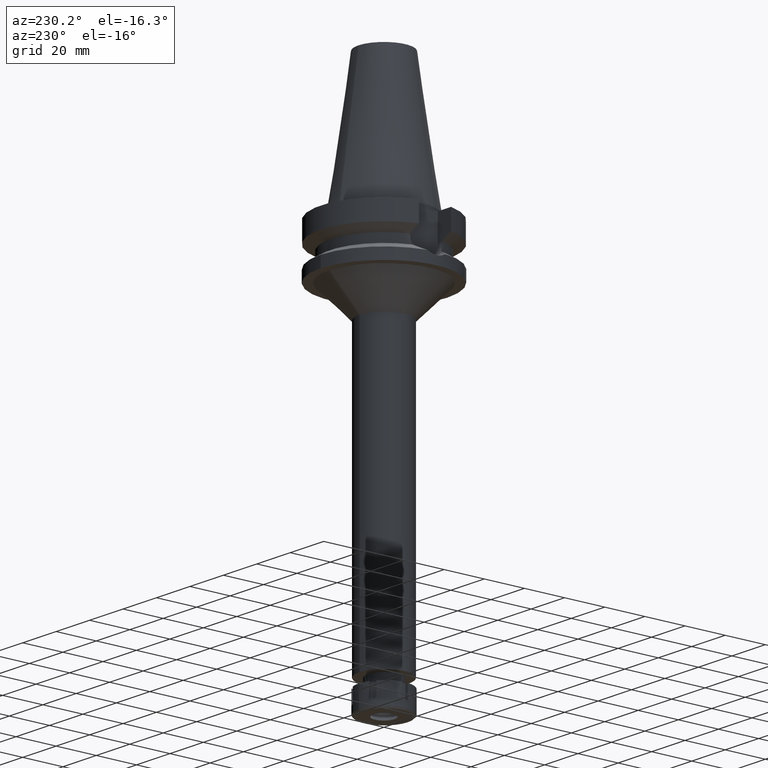
[diagram: clean part render]
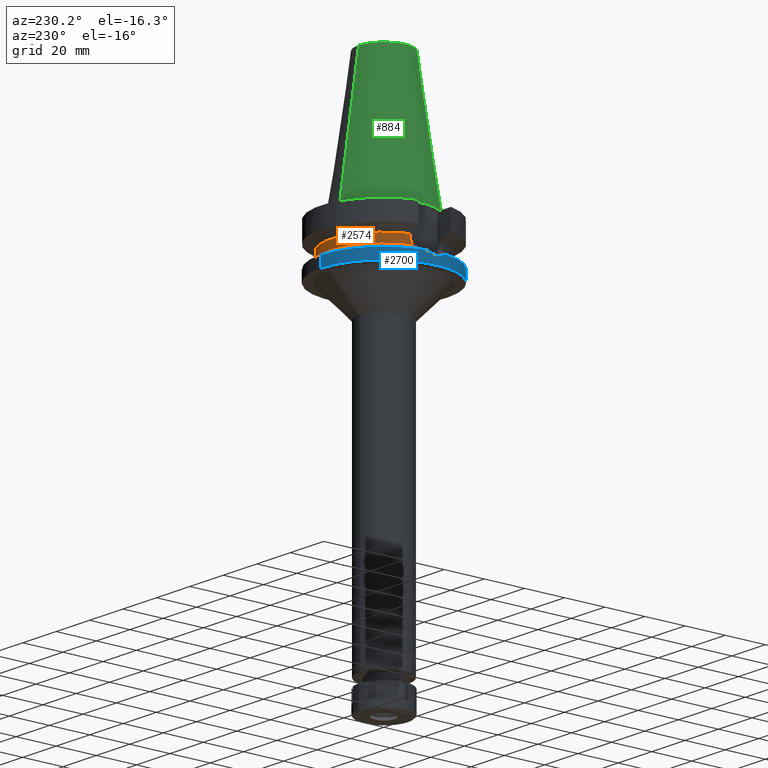
[diagram: same view with three faces highlighted in distinct colors, each labeled with its STEP entity id]
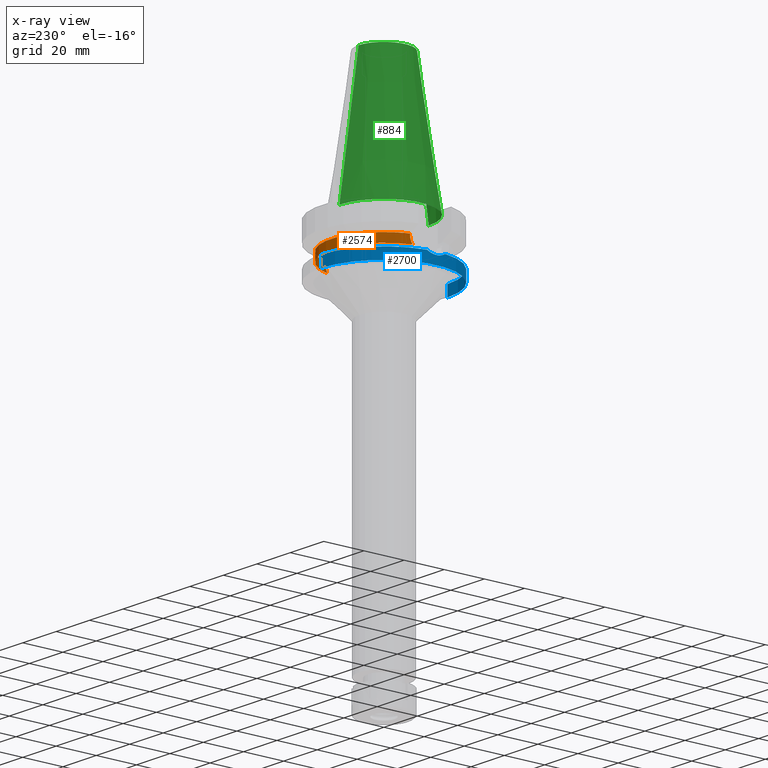
[diagram: x-ray of the same camera — body ghosted, the three highlighted faces saturated]
A machine part, auxiliary view with three faces highlighted in distinct colors.
The next image is the same camera in x-ray (body ghosted, the three faces saturated) — at least one of them is partly hidden behind the body in this view.
Their STEP definitions:

[orange] entity #2574 — the highlighted cylindrical surface (partial cylindrical patch) has radius 26.5 mm, axis along (0, 0, -1).
#121 = EDGE_CURVE ( 'NONE', #923, #2080, #1302, .T. ) ;
#185 = CARTESIAN_POINT ( 'NONE',  ( 25.39164478449756501, 7.584820969894029652, -17.65194245036793319 ) ) ;
#205 = CARTESIAN_POINT ( 'NONE',  ( -25.31205759391834320, 7.845621557333299911, -16.75326793493029243 ) ) ;
#260 = VERTEX_POINT ( 'NONE', #3055 ) ;
#351 = VECTOR ( 'NONE', #1175, 1000.000000000000114 ) ;
#369 = LINE ( 'NONE', #3117, #351 ) ;
#442 = CARTESIAN_POINT ( 'NONE',  ( 25.24772413102000002, 8.049995416383998403, -14.45229202342000008 ) ) ;
#523 = CARTESIAN_POINT ( 'NONE',  ( -25.32121872273809160, 7.815971166075089016, -16.87703378350898120 ) ) ;
#538 = CARTESIAN_POINT ( 'NONE',  ( -25.36818304347359643, 7.663708172145708986, -17.48836484274261593 ) ) ;
#552 = CARTESIAN_POINT ( 'NONE',  ( 25.24772266957998923, 8.049999999999997158, -15.58999073686739045 ) ) ;
#554 = CARTESIAN_POINT ( 'NONE',  ( -25.24772266958000344, 8.050000000000000711, -14.94999999999999929 ) ) ;
#557 = DIRECTION ( 'NONE',  ( -0.9527442516822307583, 0.3037735849057093818, 0.0000000000000000000 ) ) ;
#573 = CARTESIAN_POINT ( 'NONE',  ( 25.24772266958000344, 8.050000000000000711, -14.94999999999999929 ) ) ;
#651 = EDGE_CURVE ( 'NONE', #260, #923, #2602, .T. ) ;
#726 = CARTESIAN_POINT ( 'NONE',  ( 0.0000000000000000000, 0.0000000000000000000, -18.74774300138999905 ) ) ;
#770 = CARTESIAN_POINT ( 'NONE',  ( 25.32550226136657656, 7.802082245156440443, -16.93251888162812335 ) ) ;
#923 = VERTEX_POINT ( 'NONE', #3198 ) ;
#1064 = CARTESIAN_POINT ( 'NONE',  ( 25.53175183775000079, 7.097862220092999941, -18.74774300138999905 ) ) ;
#1102 = CARTESIAN_POINT ( 'NONE',  ( -25.29454717857531421, 7.902012029794968306, -16.48868902739532416 ) ) ;
#1121 = CARTESIAN_POINT ( 'NONE',  ( -25.25396593744604701, 8.030896968460043084, -15.59377931110964788 ) ) ;
#1158 = ORIENTED_EDGE ( 'NONE', *, *, #121, .F. ) ;
#1175 = DIRECTION ( 'NONE',  ( -1.016224662221004237E-06, -3.187251308830015568E-06, -0.9999999999944043649 ) ) ;
#1233 = ORIENTED_EDGE ( 'NONE', *, *, #1600, .T. ) ;
#1302 = LINE ( 'NONE', #2429, #3347 ) ;
#1344 = DIRECTION ( 'NONE',  ( 0.0000000000000000000, 0.0000000000000000000, -1.000000000000000000 ) ) ;
#1506 = EDGE_CURVE ( 'NONE', #1751, #2471, #2027, .T. ) ;
#1540 = DIRECTION ( 'NONE',  ( 0.0000000000000000000, 0.0000000000000000000, -1.000000000000000000 ) ) ;
#1600 = EDGE_CURVE ( 'NONE', #3296, #2080, #2583, .T. ) ;
#1631 = CARTESIAN_POINT ( 'NONE',  ( 25.37572817766061561, 7.637723572221779555, -17.49814693646424146 ) ) ;
#1655 = CARTESIAN_POINT ( 'NONE',  ( -25.31954463780458298, 7.821394976200441995, -16.85491936548652347 ) ) ;
#1696 = CARTESIAN_POINT ( 'NONE',  ( -25.28049982587670996, 7.946985634408783916, -16.24435369768241699 ) ) ;
#1751 = VERTEX_POINT ( 'NONE', #554 ) ;
#1781 = EDGE_LOOP ( 'NONE', ( #1233, #1158, #2295, #3564, #2255, #1991 ) ) ;
#1792 = DIRECTION ( 'NONE',  ( 0.0000000000000000000, 1.000000000000000000, 0.0000000000000000000 ) ) ;
#1813 = EDGE_CURVE ( 'NONE', #3296, #1751, #369, .T. ) ;
#1818 = CARTESIAN_POINT ( 'NONE',  ( 0.0000000000000000000, 2.184402495638999836E-14, 78.36999999999999034 ) ) ;
#1849 = DIRECTION ( 'NONE',  ( 0.0000000000000000000, 0.0000000000000000000, 1.000000000000000000 ) ) ;
#1991 = ORIENTED_EDGE ( 'NONE', *, *, #1813, .F. ) ;
#2027 = B_SPLINE_CURVE_WITH_KNOTS ( 'NONE', 3,
 ( #3313, #2489, #1121, #3644, #1696, #1102, #2474, #205, #2187, #1655, #523, #538, #2243, #3602 ),
 .UNSPECIFIED., .F., .F.,
 ( 4, 2, 2, 1, 1, 2, 2, 4 ),
 ( 0.0000000000000000000, 0.2500000000000056066, 0.3750000000000077161, 0.4375000000000102141, 0.4687500000000112688, 0.4843750000000106026, 0.5000000000000098810, 1.000000000000000000 ),
 .UNSPECIFIED. ) ;
#2080 = VERTEX_POINT ( 'NONE', #442 ) ;
#2168 = CARTESIAN_POINT ( 'NONE',  ( 25.35411833098892487, 7.708843546315554462, -17.27003765536253610 ) ) ;
#2183 = CARTESIAN_POINT ( 'NONE',  ( 25.33292553852031759, 7.777985707517133918, -17.02558215515302820 ) ) ;
#2187 = CARTESIAN_POINT ( 'NONE',  ( -25.31652055493196940, 7.831184758222793363, -16.81426458565252702 ) ) ;
#2243 = CARTESIAN_POINT ( 'NONE',  ( -25.43788636139942838, 7.435506143600447260, -18.11669712818442335 ) ) ;
#2255 = ORIENTED_EDGE ( 'NONE', *, *, #1506, .F. ) ;
#2268 = AXIS2_PLACEMENT_3D ( 'NONE', #1818, #1540, #3235 ) ;
#2291 = CARTESIAN_POINT ( 'NONE',  ( -25.53175183775000079, 7.097862220092999941, -18.74774300138999905 ) ) ;
#2295 = ORIENTED_EDGE ( 'NONE', *, *, #651, .F. ) ;
#2395 = DIRECTION ( 'NONE',  ( 2.936344683098950112E-06, -9.209448786821828654E-06, 0.9999999999532819261 ) ) ;
#2429 = CARTESIAN_POINT ( 'NONE',  ( 25.24772266958000344, 8.050000000000000711, -14.94999999999999929 ) ) ;
#2449 = CARTESIAN_POINT ( 'NONE',  ( 25.48481820018462329, 7.266687417048536268, -18.43221401829477557 ) ) ;
#2468 = CARTESIAN_POINT ( 'NONE',  ( 25.44392473217584794, 7.408251102513691677, -18.11706870842466444 ) ) ;
#2471 = VERTEX_POINT ( 'NONE', #2291 ) ;
#2474 = CARTESIAN_POINT ( 'NONE',  ( -25.30215616128705847, 7.877576232119784194, -16.61085564856636410 ) ) ;
#2485 = CARTESIAN_POINT ( 'NONE',  ( 25.32419265906722927, 7.806329682139926618, -16.91574545217539338 ) ) ;
#2489 = CARTESIAN_POINT ( 'NONE',  ( -25.24772266957999634, 8.050000000000020250, -15.27000127550041242 ) ) ;
#2550 = AXIS2_PLACEMENT_3D ( 'NONE', #726, #1849, #1792 ) ;
#2566 = CARTESIAN_POINT ( 'NONE',  ( -25.24772216375000156, 8.050001586471001502, -14.45224487658000001 ) ) ;
#2574 = ADVANCED_FACE ( 'NONE', ( #2684 ), #2904, .T. ) ;
#2583 = CIRCLE ( 'NONE', #3051, 26.50000000000000711 ) ;
#2602 = B_SPLINE_CURVE_WITH_KNOTS ( 'NONE', 3,
 ( #1064, #2449, #2468, #185, #1631, #2168, #3326, #2183, #3580, #770, #2485, #3597, #552, #573 ),
 .UNSPECIFIED., .F., .F.,
 ( 4, 2, 2, 1, 1, 2, 2, 4 ),
 ( 0.0000000000000000000, 0.2500000000000031641, 0.3750000000000034972, 0.4375000000000037192, 0.4687500000000026090, 0.4843750000000018874, 0.5000000000000012212, 1.000000000000000000 ),
 .UNSPECIFIED. ) ;
#2684 = FACE_OUTER_BOUND ( 'NONE', #1781, .T. ) ;
#2904 = CYLINDRICAL_SURFACE ( 'NONE', #2268, 26.50000000000000000 ) ;
#2906 = EDGE_CURVE ( 'NONE', #260, #2471, #3202, .T. ) ;
#3051 = AXIS2_PLACEMENT_3D ( 'NONE', #3080, #1344, #557 ) ;
#3055 = CARTESIAN_POINT ( 'NONE',  ( 25.53175183775000079, 7.097862220092999941, -18.74774300138999905 ) ) ;
#3080 = CARTESIAN_POINT ( 'NONE',  ( 0.0000000000000000000, 1.065333950388000029E-14, -14.45225699861000024 ) ) ;
#3117 = CARTESIAN_POINT ( 'NONE',  ( -25.24772216375000156, 8.050001586471001502, -14.45224487658000001 ) ) ;
#3198 = CARTESIAN_POINT ( 'NONE',  ( 25.24772266958000344, 8.050000000000000711, -14.94999999999999929 ) ) ;
#3202 = CIRCLE ( 'NONE', #2550, 26.50000000000000000 ) ;
#3235 = DIRECTION ( 'NONE',  ( 0.0000000000000000000, -1.000000000000000000, 0.0000000000000000000 ) ) ;
#3296 = VERTEX_POINT ( 'NONE', #2566 ) ;
#3313 = CARTESIAN_POINT ( 'NONE',  ( -25.24772266958000344, 8.050000000000000711, -14.94999999999999929 ) ) ;
#3326 = CARTESIAN_POINT ( 'NONE',  ( 25.34387967354901505, 7.742345491372138788, -17.15662736176061998 ) ) ;
#3347 = VECTOR ( 'NONE', #2395, 1000.000000000000114 ) ;
#3564 = ORIENTED_EDGE ( 'NONE', *, *, #2906, .T. ) ;
#3580 = CARTESIAN_POINT ( 'NONE',  ( 25.32844325893327664, 7.792538688759532484, -16.96970524096544253 ) ) ;
#3597 = CARTESIAN_POINT ( 'NONE',  ( 25.27269246206562769, 7.973290322419638976, -16.24535685341708913 ) ) ;
#3602 = CARTESIAN_POINT ( 'NONE',  ( -25.53175183775000079, 7.097862220092999941, -18.74774300138999905 ) ) ;
#3644 = CARTESIAN_POINT ( 'NONE',  ( -25.27269574104415284, 7.971769475028606777, -16.08146184949411861 ) ) ;

[blue] entity #2700 — the highlighted cylindrical surface (partial cylindrical patch) has radius 31.5 mm, axis along (0, 0, -1).
#24 = ORIENTED_EDGE ( 'NONE', *, *, #568, .T. ) ;
#45 = CARTESIAN_POINT ( 'NONE',  ( -31.50016226174372846, 0.7553448558669625390, -23.00108167704518891 ) ) ;
#64 = CARTESIAN_POINT ( 'NONE',  ( -31.41624095220613100, -2.295254155272451246, -22.66588935698192842 ) ) ;
#105 = VECTOR ( 'NONE', #2792, 1000.000000000000000 ) ;
#120 = AXIS2_PLACEMENT_3D ( 'NONE', #485, #754, #786 ) ;
#138 = DIRECTION ( 'NONE',  ( 0.0000000000000000000, -1.000000000000000000, 0.0000000000000000000 ) ) ;
#186 = CYLINDRICAL_SURFACE ( 'NONE', #1511, 31.50000000000000000 ) ;
#198 = VERTEX_POINT ( 'NONE', #3344 ) ;
#273 = CARTESIAN_POINT ( 'NONE',  ( -31.44521497296324952, -1.857319212929447794, -22.78344528797277846 ) ) ;
#293 = CARTESIAN_POINT ( 'NONE',  ( -31.39045759055227691, 2.626111871519638097, -22.56055148595709170 ) ) ;
#329 = CARTESIAN_POINT ( 'NONE',  ( -31.27852074678261829, 3.743565660628345615, -22.08777115908902644 ) ) ;
#330 = EDGE_LOOP ( 'NONE', ( #1372, #2607, #24, #2304, #504, #2133 ) ) ;
#348 = CARTESIAN_POINT ( 'NONE',  ( -31.41427454809003095, -2.322011783622741632, -22.65786880853089613 ) ) ;
#485 = CARTESIAN_POINT ( 'NONE',  ( 0.0000000000000000000, 2.184402495638999836E-14, -27.00000000000000000 ) ) ;
#504 = ORIENTED_EDGE ( 'NONE', *, *, #850, .T. ) ;
#568 = EDGE_CURVE ( 'NONE', #592, #2835, #2357, .T. ) ;
#572 = AXIS2_PLACEMENT_3D ( 'NONE', #834, #1468, #1762 ) ;
#592 = VERTEX_POINT ( 'NONE', #1907 ) ;
#602 = VERTEX_POINT ( 'NONE', #1045 ) ;
#627 = CARTESIAN_POINT ( 'NONE',  ( -31.40255277899969144, 2.475889768991891948, -22.61002463154033748 ) ) ;
#644 = DIRECTION ( 'NONE',  ( 0.0000000000000000000, 0.0000000000000000000, -1.000000000000000000 ) ) ;
#731 = EDGE_CURVE ( 'NONE', #198, #1836, #2866, .T. ) ;
#754 = DIRECTION ( 'NONE',  ( 0.0000000000000000000, 0.0000000000000000000, 1.000000000000000000 ) ) ;
#755 = FACE_OUTER_BOUND ( 'NONE', #330, .T. ) ;
#786 = DIRECTION ( 'NONE',  ( 0.0000000000000000000, 1.000000000000000000, 0.0000000000000000000 ) ) ;
#834 = CARTESIAN_POINT ( 'NONE',  ( 0.0000000000000000000, 0.0000000000000000000, -21.63449434733000132 ) ) ;
#850 = EDGE_CURVE ( 'NONE', #602, #1836, #867, .T. ) ;
#860 = CARTESIAN_POINT ( 'NONE',  ( -31.47058120871450271, -1.369142308242303763, -22.88516535468439983 ) ) ;
#867 = CIRCLE ( 'NONE', #1336, 31.50000000000000000 ) ;
#877 = CARTESIAN_POINT ( 'NONE',  ( -31.47151674143058742, 1.548317662316522680, -22.89141369102538093 ) ) ;
#1045 = CARTESIAN_POINT ( 'NONE',  ( 0.0000000000000000000, -31.50000000000000000, -21.63449434733000132 ) ) ;
#1065 = DIRECTION ( 'NONE',  ( 0.0000000000000000000, -1.105773104655000034E-13, -1.000000000000000000 ) ) ;
#1097 = CARTESIAN_POINT ( 'NONE',  ( 0.0000000000000000000, -31.50000000000000000, -21.63449434733000132 ) ) ;
#1116 = CARTESIAN_POINT ( 'NONE',  ( -31.49972673698640691, -0.3948342069872473603, -22.99944696575031600 ) ) ;
#1173 = CARTESIAN_POINT ( 'NONE',  ( -31.46151406157553865, -1.564578752362164815, -22.84902476772771962 ) ) ;
#1224 = EDGE_CURVE ( 'NONE', #1416, #592, #3070, .T. ) ;
#1308 = CARTESIAN_POINT ( 'NONE',  ( 0.0000000000000000000, 31.50000000000000000, -21.63449434733000132 ) ) ;
#1336 = AXIS2_PLACEMENT_3D ( 'NONE', #2968, #644, #138 ) ;
#1372 = ORIENTED_EDGE ( 'NONE', *, *, #2453, .T. ) ;
#1415 = CARTESIAN_POINT ( 'NONE',  ( -31.41974449094678334, -2.246704994957214652, -22.68016538452552311 ) ) ;
#1416 = VERTEX_POINT ( 'NONE', #1308 ) ;
#1434 = CARTESIAN_POINT ( 'NONE',  ( -31.17899877608999759, -4.485536235554000051, -21.63449434733000132 ) ) ;
#1468 = DIRECTION ( 'NONE',  ( 0.0000000000000000000, 0.0000000000000000000, -1.000000000000000000 ) ) ;
#1511 = AXIS2_PLACEMENT_3D ( 'NONE', #2696, #2640, #3518 ) ;
#1550 = CARTESIAN_POINT ( 'NONE',  ( 0.0000000000000000000, -31.50000000000000000, -27.00000000000000000 ) ) ;
#1745 = CARTESIAN_POINT ( 'NONE',  ( -31.43639083668116285, -2.003584991165518581, -22.74781440956472522 ) ) ;
#1762 = DIRECTION ( 'NONE',  ( -0.9898094849552905306, 0.1423979757318985240, 0.0000000000000000000 ) ) ;
#1836 = VERTEX_POINT ( 'NONE', #1434 ) ;
#1907 = CARTESIAN_POINT ( 'NONE',  ( 0.0000000000000000000, 31.50000000000000000, -27.00000000000000000 ) ) ;
#1982 = CARTESIAN_POINT ( 'NONE',  ( -31.49238591432377277, -0.7837771826869384117, -22.97145827100721149 ) ) ;
#2001 = CARTESIAN_POINT ( 'NONE',  ( -31.40748763923781439, 2.412034068403642539, -22.63017485189298839 ) ) ;
#2133 = ORIENTED_EDGE ( 'NONE', *, *, #731, .F. ) ;
#2239 = CARTESIAN_POINT ( 'NONE',  ( -31.33723953976907950, 3.199800677297995222, -22.33942933312871304 ) ) ;
#2274 = CARTESIAN_POINT ( 'NONE',  ( -31.17899877608999759, 4.485536235554000051, -21.63449434733000132 ) ) ;
#2297 = CARTESIAN_POINT ( 'NONE',  ( -31.28479214208094916, -3.750165690010915487, -22.12795444426803826 ) ) ;
#2304 = ORIENTED_EDGE ( 'NONE', *, *, #3552, .F. ) ;
#2357 = CIRCLE ( 'NONE', #120, 31.50000000000000000 ) ;
#2453 = EDGE_CURVE ( 'NONE', #198, #1416, #3272, .T. ) ;
#2554 = CARTESIAN_POINT ( 'NONE',  ( -31.23229813588810089, 4.115051953028643794, -21.88310263206245665 ) ) ;
#2596 = CARTESIAN_POINT ( 'NONE',  ( -31.37909511835421839, 2.756869707466210073, -22.51379599041223756 ) ) ;
#2607 = ORIENTED_EDGE ( 'NONE', *, *, #1224, .T. ) ;
#2640 = DIRECTION ( 'NONE',  ( 0.0000000000000000000, 0.0000000000000000000, -1.000000000000000000 ) ) ;
#2696 = CARTESIAN_POINT ( 'NONE',  ( 0.0000000000000000000, 2.184402495638999836E-14, 78.36999999999999034 ) ) ;
#2700 = ADVANCED_FACE ( 'NONE', ( #755 ), #186, .T. ) ;
#2792 = DIRECTION ( 'NONE',  ( 0.0000000000000000000, 1.099151708819000049E-13, -1.000000000000000000 ) ) ;
#2800 = CARTESIAN_POINT ( 'NONE',  ( -31.41213111299554583, 2.350866381985248221, -22.64912804183910211 ) ) ;
#2835 = VERTEX_POINT ( 'NONE', #1550 ) ;
#2866 = B_SPLINE_CURVE_WITH_KNOTS ( 'NONE', 3,
 ( #2274, #2554, #329, #2239, #3094, #2596, #293, #627, #2001, #3166, #2800, #877, #45, #1116, #1982, #860, #1173, #273, #1745, #3638, #1415, #64, #348, #3135, #2297, #3418 ),
 .UNSPECIFIED., .F., .F.,
 ( 4, 2, 2, 1, 1, 2, 2, 2, 2, 2, 1, 1, 2, 2, 4 ),
 ( 0.0000000000000000000, 0.1249999999999988620, 0.1874999999999983347, 0.2187499999999981404, 0.2343749999999979738, 0.2421874999999979183, 0.2499999999999978351, 0.4999999999999987788, 0.6249999999999993339, 0.6874999999999996669, 0.7187499999999996669, 0.7343749999999998890, 0.7421875000000001110, 0.7500000000000003331, 1.000000000000000000 ),
 .UNSPECIFIED. ) ;
#2968 = CARTESIAN_POINT ( 'NONE',  ( 0.0000000000000000000, 0.0000000000000000000, -21.63449434733000132 ) ) ;
#3058 = LINE ( 'NONE', #1097, #3148 ) ;
#3070 = LINE ( 'NONE', #3340, #105 ) ;
#3094 = CARTESIAN_POINT ( 'NONE',  ( -31.35504328353866299, 3.020738684587082279, -22.41411409837246183 ) ) ;
#3135 = CARTESIAN_POINT ( 'NONE',  ( -31.36269640810126447, -3.013915826155650901, -22.44737495571485297 ) ) ;
#3148 = VECTOR ( 'NONE', #1065, 1000.000000000000000 ) ;
#3166 = CARTESIAN_POINT ( 'NONE',  ( -31.41072225896240155, 2.369583156271251045, -22.64337830658969253 ) ) ;
#3272 = CIRCLE ( 'NONE', #572, 31.50000000000001421 ) ;
#3340 = CARTESIAN_POINT ( 'NONE',  ( 0.0000000000000000000, 31.50000000000000000, -21.63449434733000132 ) ) ;
#3344 = CARTESIAN_POINT ( 'NONE',  ( -31.17899877608999759, 4.485536235554000051, -21.63449434733000132 ) ) ;
#3418 = CARTESIAN_POINT ( 'NONE',  ( -31.17899877608999759, -4.485536235554000051, -21.63449434733000132 ) ) ;
#3518 = DIRECTION ( 'NONE',  ( 0.0000000000000000000, -1.000000000000000000, 0.0000000000000000000 ) ) ;
#3552 = EDGE_CURVE ( 'NONE', #602, #2835, #3058, .T. ) ;
#3638 = CARTESIAN_POINT ( 'NONE',  ( -31.42491547506079286, -2.173842506240806216, -22.70121779111163818 ) ) ;

[green] entity #884 — the highlighted conical surface has half-angle 8.297 deg.
#125 = CARTESIAN_POINT ( 'NONE',  ( 0.0000000000000000000, 12.68766899429999917, 65.40000000000000568 ) ) ;
#362 = CARTESIAN_POINT ( 'NONE',  ( 0.0000000000000000000, 1.625106302469000024E-14, 1.136868377215999875E-13 ) ) ;
#380 = EDGE_CURVE ( 'NONE', #559, #1342, #955, .T. ) ;
#465 = CIRCLE ( 'NONE', #1867, 12.68766899429999917 ) ;
#559 = VERTEX_POINT ( 'NONE', #2748 ) ;
#649 = CARTESIAN_POINT ( 'NONE',  ( 0.0000000000000000000, -12.68766899429999917, 65.40000000000000568 ) ) ;
#710 = EDGE_CURVE ( 'NONE', #559, #2031, #465, .T. ) ;
#715 = EDGE_LOOP ( 'NONE', ( #3227, #1207, #2455, #753 ) ) ;
#753 = ORIENTED_EDGE ( 'NONE', *, *, #1769, .T. ) ;
#840 = DIRECTION ( 'NONE',  ( 0.0000000000000000000, 0.1443043893539925626, -0.9895333461855498891 ) ) ;
#884 = ADVANCED_FACE ( 'NONE', ( #1763 ), #1812, .T. ) ;
#955 = LINE ( 'NONE', #649, #2950 ) ;
#1114 = VERTEX_POINT ( 'NONE', #1299 ) ;
#1207 = ORIENTED_EDGE ( 'NONE', *, *, #380, .F. ) ;
#1259 = CARTESIAN_POINT ( 'NONE',  ( 0.0000000000000000000, 1.625106302469000024E-14, 32.70000000000000284 ) ) ;
#1299 = CARTESIAN_POINT ( 'NONE',  ( 0.0000000000000000000, 22.22500000000000142, 9.947598300640998705E-14 ) ) ;
#1301 = EDGE_CURVE ( 'NONE', #1342, #1114, #2403, .T. ) ;
#1342 = VERTEX_POINT ( 'NONE', #1519 ) ;
#1519 = CARTESIAN_POINT ( 'NONE',  ( 0.0000000000000000000, -22.22500000000000142, 1.136868377215999875E-13 ) ) ;
#1731 = DIRECTION ( 'NONE',  ( 0.0000000000000000000, -0.1443043893539925626, -0.9895333461855498891 ) ) ;
#1763 = FACE_OUTER_BOUND ( 'NONE', #715, .T. ) ;
#1769 = EDGE_CURVE ( 'NONE', #2031, #1114, #2185, .T. ) ;
#1812 = CONICAL_SURFACE ( 'NONE', #2702, 17.45633449714999941, 0.1448099680379422438 ) ;
#1815 = DIRECTION ( 'NONE',  ( 0.0000000000000000000, -1.000000000000000000, 0.0000000000000000000 ) ) ;
#1821 = DIRECTION ( 'NONE',  ( 0.0000000000000000000, -1.000000000000000000, 0.0000000000000000000 ) ) ;
#1867 = AXIS2_PLACEMENT_3D ( 'NONE', #2874, #3151, #2854 ) ;
#1929 = AXIS2_PLACEMENT_3D ( 'NONE', #362, #2628, #1815 ) ;
#2031 = VERTEX_POINT ( 'NONE', #125 ) ;
#2185 = LINE ( 'NONE', #3365, #2227 ) ;
#2227 = VECTOR ( 'NONE', #840, 1000.000000000000114 ) ;
#2403 = CIRCLE ( 'NONE', #1929, 22.22500000000000142 ) ;
#2455 = ORIENTED_EDGE ( 'NONE', *, *, #710, .T. ) ;
#2628 = DIRECTION ( 'NONE',  ( 0.0000000000000000000, 0.0000000000000000000, -1.000000000000000000 ) ) ;
#2702 = AXIS2_PLACEMENT_3D ( 'NONE', #1259, #3217, #1821 ) ;
#2748 = CARTESIAN_POINT ( 'NONE',  ( 0.0000000000000000000, -12.68766899429999917, 65.40000000000000568 ) ) ;
#2854 = DIRECTION ( 'NONE',  ( 0.0000000000000000000, -1.000000000000000000, 0.0000000000000000000 ) ) ;
#2874 = CARTESIAN_POINT ( 'NONE',  ( 0.0000000000000000000, 1.625106302469000024E-14, 65.40000000000000568 ) ) ;
#2950 = VECTOR ( 'NONE', #1731, 1000.000000000000114 ) ;
#3151 = DIRECTION ( 'NONE',  ( 0.0000000000000000000, 0.0000000000000000000, -1.000000000000000000 ) ) ;
#3217 = DIRECTION ( 'NONE',  ( 0.0000000000000000000, 0.0000000000000000000, -1.000000000000000000 ) ) ;
#3227 = ORIENTED_EDGE ( 'NONE', *, *, #1301, .F. ) ;
#3365 = CARTESIAN_POINT ( 'NONE',  ( 0.0000000000000000000, 12.68766899429999917, 65.40000000000000568 ) ) ;